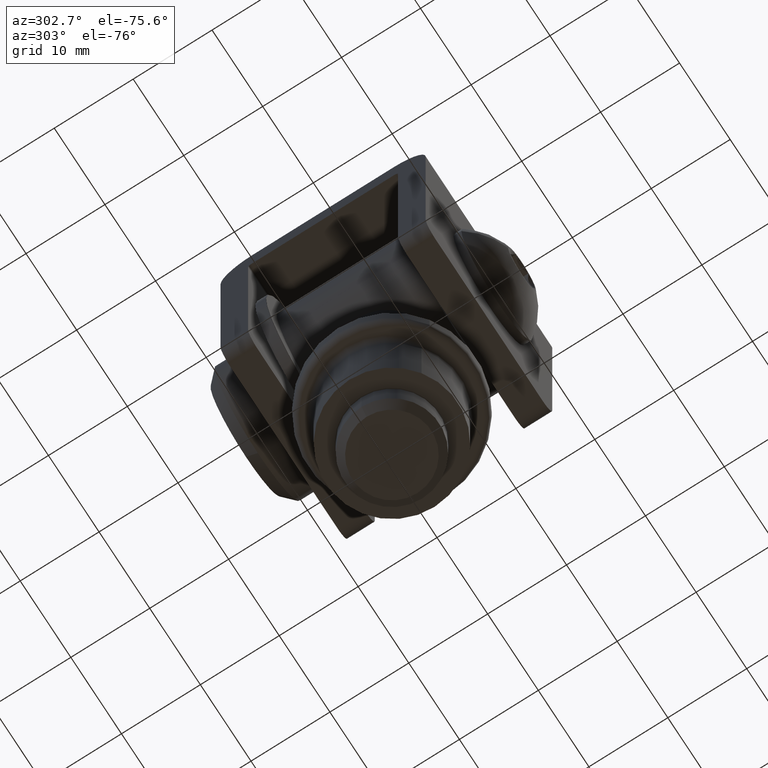
[diagram: clean part render]
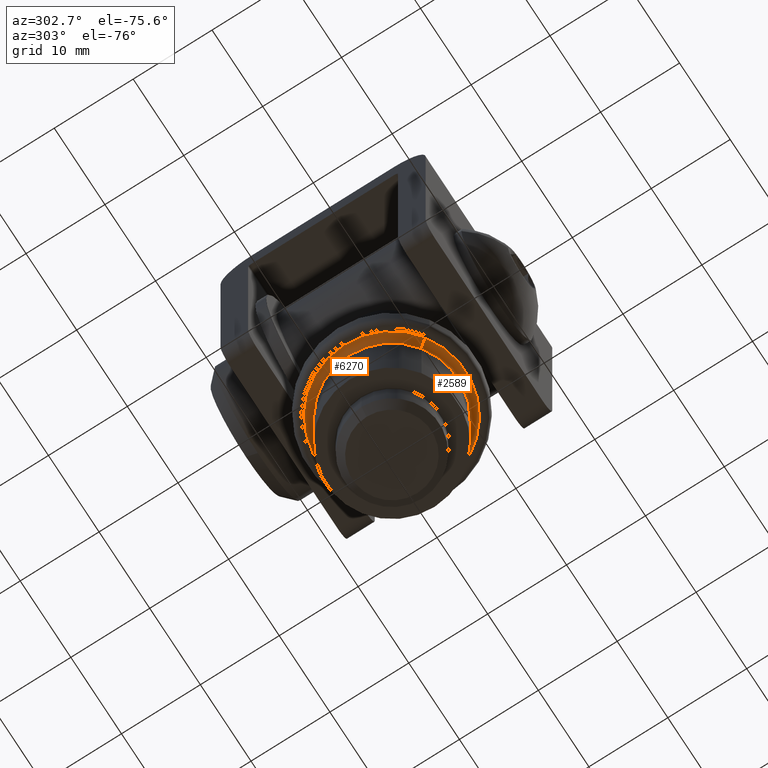
[diagram: same view with one multi-face feature highlighted, each face labeled with its STEP entity id]
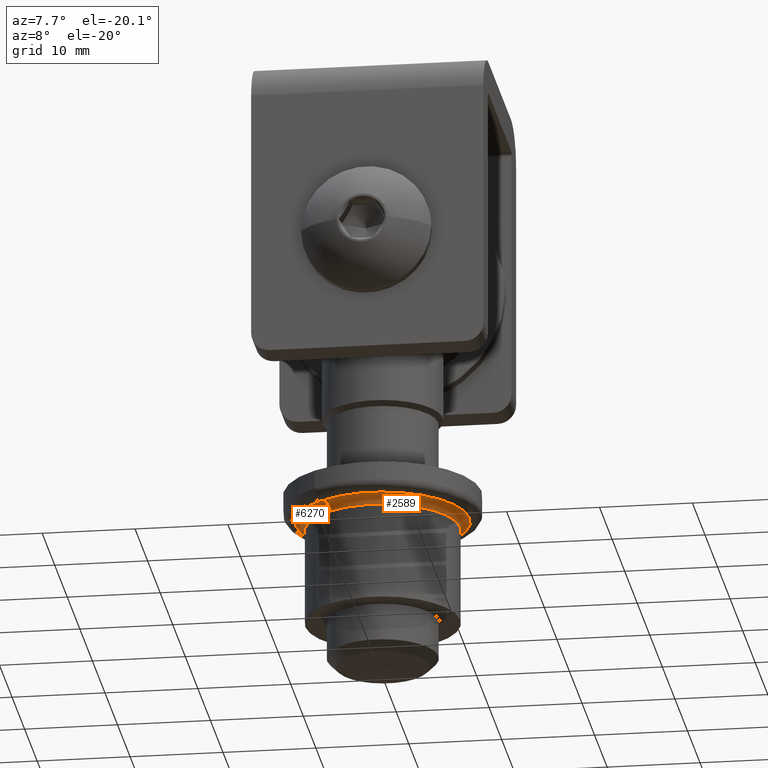
[diagram: same view with one multi-face feature highlighted, each face labeled with its STEP entity id]
A machine part, auxiliary view. The highlighted faces form ONE feature: a constant-radius fillet chain: 2 tangent blend faces with common blend radius 1 mm. The faces share edges in the B-rep.
A second angle (auxiliary view) of the same feature is appended — it is thin or edge-on in the first view.
Their STEP definitions:
[1] entity #6270 (Torus):
#23 = EDGE_CURVE ( 'NONE', #3259, #6297, #10123, .T. ) ;
#619 = CIRCLE ( 'NONE', #9620, 1.000000000000000900 ) ;
#812 = DIRECTION ( 'NONE',  ( 1.000000000000000000, 3.755563391555109900E-033, 1.224646799147353200E-016 ) ) ;
#1075 = DIRECTION ( 'NONE',  ( -2.051328787785033900E-037, -2.600005424922768400E-033, 1.000000000000000000 ) ) ;
#1119 = EDGE_CURVE ( 'NONE', #6297, #13097, #1781, .T. ) ;
#1781 = CIRCLE ( 'NONE', #8386, 9.350000000000013900 ) ;
#2054 = CARTESIAN_POINT ( 'NONE',  ( 1.022580077288039500E-015, 4.000000000000003600, 8.349999999999997900 ) ) ;
#2716 = ORIENTED_EDGE ( 'NONE', *, *, #3040, .T. ) ;
#3040 = EDGE_CURVE ( 'NONE', #4264, #13097, #619, .T. ) ;
#3131 = DIRECTION ( 'NONE',  ( 1.224646799147351500E-016, 0.0000000000000000000, -1.000000000000000000 ) ) ;
#3259 = VERTEX_POINT ( 'NONE', #2054 ) ;
#3392 = CARTESIAN_POINT ( 'NONE',  ( -3.473724851234690400E-032, 4.000000000000003600, -8.349999999999997900 ) ) ;
#3709 = ORIENTED_EDGE ( 'NONE', *, *, #1119, .F. ) ;
#4157 = AXIS2_PLACEMENT_3D ( 'NONE', #10805, #10948, #9714 ) ;
#4264 = VERTEX_POINT ( 'NONE', #3392 ) ;
#5220 = EDGE_CURVE ( 'NONE', #4264, #3259, #11036, .T. ) ;
#5229 = DIRECTION ( 'NONE',  ( 3.755563391555109900E-033, -1.000000000000000000, -2.600005424922768400E-033 ) ) ;
#5474 = DIRECTION ( 'NONE',  ( 3.755563391555109900E-033, -1.000000000000000000, 0.0000000000000000000 ) ) ;
#5804 = ORIENTED_EDGE ( 'NONE', *, *, #23, .F. ) ;
#6270 = ADVANCED_FACE ( 'NONE', ( #6992 ), #9299, .F. ) ;
#6297 = VERTEX_POINT ( 'NONE', #9724 ) ;
#6992 = FACE_OUTER_BOUND ( 'NONE', #9891, .T. ) ;
#7191 = DIRECTION ( 'NONE',  ( -2.051328787785033900E-037, 0.0000000000000000000, 1.000000000000000000 ) ) ;
#8386 = AXIS2_PLACEMENT_3D ( 'NONE', #10761, #5229, #7191 ) ;
#9299 = TOROIDAL_SURFACE ( 'NONE', #13918, 9.349999999999997900, 1.000000000000000000 ) ;
#9620 = AXIS2_PLACEMENT_3D ( 'NONE', #9808, #812, #3131 ) ;
#9714 = DIRECTION ( 'NONE',  ( -2.051328787785033900E-037, 0.0000000000000000000, 1.000000000000000000 ) ) ;
#9724 = CARTESIAN_POINT ( 'NONE',  ( 3.753645399138532600E-033, 3.000000000000003100, 9.350000000000013900 ) ) ;
#9808 = CARTESIAN_POINT ( 'NONE',  ( 1.145044757202776800E-015, 4.000000000000003600, -9.350000000000013900 ) ) ;
#9891 = EDGE_LOOP ( 'NONE', ( #13412, #2716, #3709, #5804 ) ) ;
#10123 = CIRCLE ( 'NONE', #14370, 1.000000000000000000 ) ;
#10761 = CARTESIAN_POINT ( 'NONE',  ( 0.0000000000000000000, 3.000000000000002700, 0.0000000000000000000 ) ) ;
#10805 = CARTESIAN_POINT ( 'NONE',  ( 0.0000000000000000000, 4.000000000000003600, 0.0000000000000000000 ) ) ;
#10948 = DIRECTION ( 'NONE',  ( -3.755563391555109900E-033, 1.000000000000000000, 2.600005424922768400E-033 ) ) ;
#11036 = CIRCLE ( 'NONE', #4157, 8.350000000000013900 ) ;
#11776 = CARTESIAN_POINT ( 'NONE',  ( 1.145044757202777000E-015, 3.000000000000002200, -9.350000000000013900 ) ) ;
#12758 = CARTESIAN_POINT ( 'NONE',  ( 0.0000000000000000000, 4.000000000000003600, 0.0000000000000000000 ) ) ;
#13097 = VERTEX_POINT ( 'NONE', #11776 ) ;
#13141 = CARTESIAN_POINT ( 'NONE',  ( -1.917992416579009500E-036, 4.000000000000003600, 9.350000000000013900 ) ) ;
#13412 = ORIENTED_EDGE ( 'NONE', *, *, #5220, .F. ) ;
#13908 = DIRECTION ( 'NONE',  ( -3.755563391555109900E-033, 1.000000000000000000, 2.600005424922768400E-033 ) ) ;
#13918 = AXIS2_PLACEMENT_3D ( 'NONE', #12758, #13908, #1075 ) ;
#14277 = DIRECTION ( 'NONE',  ( -1.000000000000000000, -3.755563391555109900E-033, -2.051328787785033900E-037 ) ) ;
#14370 = AXIS2_PLACEMENT_3D ( 'NONE', #13141, #14277, #5474 ) ;
[2] entity #2589 (Torus):
#23 = EDGE_CURVE ( 'NONE', #3259, #6297, #10123, .T. ) ;
#619 = CIRCLE ( 'NONE', #9620, 1.000000000000000900 ) ;
#670 = DIRECTION ( 'NONE',  ( -2.051328787785033900E-037, 0.0000000000000000000, 1.000000000000000000 ) ) ;
#812 = DIRECTION ( 'NONE',  ( 1.000000000000000000, 3.755563391555109900E-033, 1.224646799147353200E-016 ) ) ;
#2054 = CARTESIAN_POINT ( 'NONE',  ( 1.022580077288039500E-015, 4.000000000000003600, 8.349999999999997900 ) ) ;
#2210 = FACE_OUTER_BOUND ( 'NONE', #7746, .T. ) ;
#2461 = AXIS2_PLACEMENT_3D ( 'NONE', #6010, #13788, #4936 ) ;
#2589 = ADVANCED_FACE ( 'NONE', ( #2210 ), #3273, .F. ) ;
#3040 = EDGE_CURVE ( 'NONE', #4264, #13097, #619, .T. ) ;
#3131 = DIRECTION ( 'NONE',  ( 1.224646799147351500E-016, 0.0000000000000000000, -1.000000000000000000 ) ) ;
#3259 = VERTEX_POINT ( 'NONE', #2054 ) ;
#3273 = TOROIDAL_SURFACE ( 'NONE', #3784, 9.349999999999997900, 1.000000000000000000 ) ;
#3392 = CARTESIAN_POINT ( 'NONE',  ( -3.473724851234690400E-032, 4.000000000000003600, -8.349999999999997900 ) ) ;
#3415 = ORIENTED_EDGE ( 'NONE', *, *, #3579, .F. ) ;
#3579 = EDGE_CURVE ( 'NONE', #13097, #6297, #3787, .T. ) ;
#3641 = CIRCLE ( 'NONE', #12166, 8.350000000000013900 ) ;
#3784 = AXIS2_PLACEMENT_3D ( 'NONE', #13773, #10441, #12716 ) ;
#3787 = CIRCLE ( 'NONE', #2461, 9.350000000000013900 ) ;
#4264 = VERTEX_POINT ( 'NONE', #3392 ) ;
#4936 = DIRECTION ( 'NONE',  ( -2.051328787785033900E-037, 0.0000000000000000000, 1.000000000000000000 ) ) ;
#5474 = DIRECTION ( 'NONE',  ( 3.755563391555109900E-033, -1.000000000000000000, 0.0000000000000000000 ) ) ;
#6010 = CARTESIAN_POINT ( 'NONE',  ( 0.0000000000000000000, 3.000000000000002700, 0.0000000000000000000 ) ) ;
#6297 = VERTEX_POINT ( 'NONE', #9724 ) ;
#6604 = ORIENTED_EDGE ( 'NONE', *, *, #23, .T. ) ;
#7290 = DIRECTION ( 'NONE',  ( -3.755563391555109900E-033, 1.000000000000000000, 2.600005424922768400E-033 ) ) ;
#7746 = EDGE_LOOP ( 'NONE', ( #10214, #9633, #6604, #3415 ) ) ;
#9620 = AXIS2_PLACEMENT_3D ( 'NONE', #9808, #812, #3131 ) ;
#9633 = ORIENTED_EDGE ( 'NONE', *, *, #13162, .F. ) ;
#9724 = CARTESIAN_POINT ( 'NONE',  ( 3.753645399138532600E-033, 3.000000000000003100, 9.350000000000013900 ) ) ;
#9749 = CARTESIAN_POINT ( 'NONE',  ( 0.0000000000000000000, 4.000000000000003600, 0.0000000000000000000 ) ) ;
#9808 = CARTESIAN_POINT ( 'NONE',  ( 1.145044757202776800E-015, 4.000000000000003600, -9.350000000000013900 ) ) ;
#10123 = CIRCLE ( 'NONE', #14370, 1.000000000000000000 ) ;
#10214 = ORIENTED_EDGE ( 'NONE', *, *, #3040, .F. ) ;
#10441 = DIRECTION ( 'NONE',  ( -3.755563391555109900E-033, 1.000000000000000000, 2.600005424922768400E-033 ) ) ;
#11776 = CARTESIAN_POINT ( 'NONE',  ( 1.145044757202777000E-015, 3.000000000000002200, -9.350000000000013900 ) ) ;
#12166 = AXIS2_PLACEMENT_3D ( 'NONE', #9749, #7290, #670 ) ;
#12716 = DIRECTION ( 'NONE',  ( -2.051328787785033900E-037, -2.600005424922768400E-033, 1.000000000000000000 ) ) ;
#13097 = VERTEX_POINT ( 'NONE', #11776 ) ;
#13141 = CARTESIAN_POINT ( 'NONE',  ( -1.917992416579009500E-036, 4.000000000000003600, 9.350000000000013900 ) ) ;
#13162 = EDGE_CURVE ( 'NONE', #3259, #4264, #3641, .T. ) ;
#13773 = CARTESIAN_POINT ( 'NONE',  ( 0.0000000000000000000, 4.000000000000003600, 0.0000000000000000000 ) ) ;
#13788 = DIRECTION ( 'NONE',  ( 3.755563391555109900E-033, -1.000000000000000000, -2.600005424922768400E-033 ) ) ;
#14277 = DIRECTION ( 'NONE',  ( -1.000000000000000000, -3.755563391555109900E-033, -2.051328787785033900E-037 ) ) ;
#14370 = AXIS2_PLACEMENT_3D ( 'NONE', #13141, #14277, #5474 ) ;